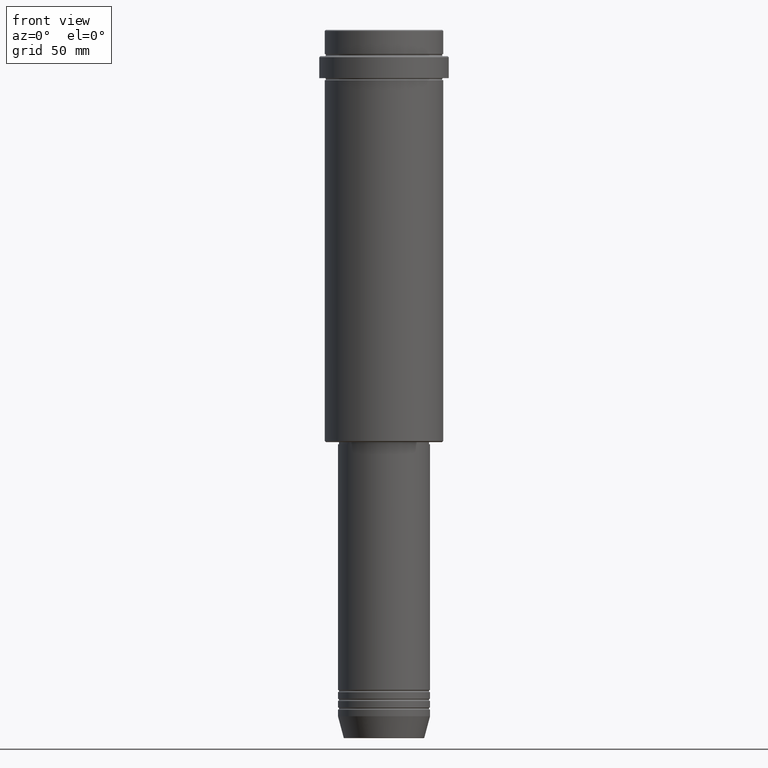
[diagram: clean part render]
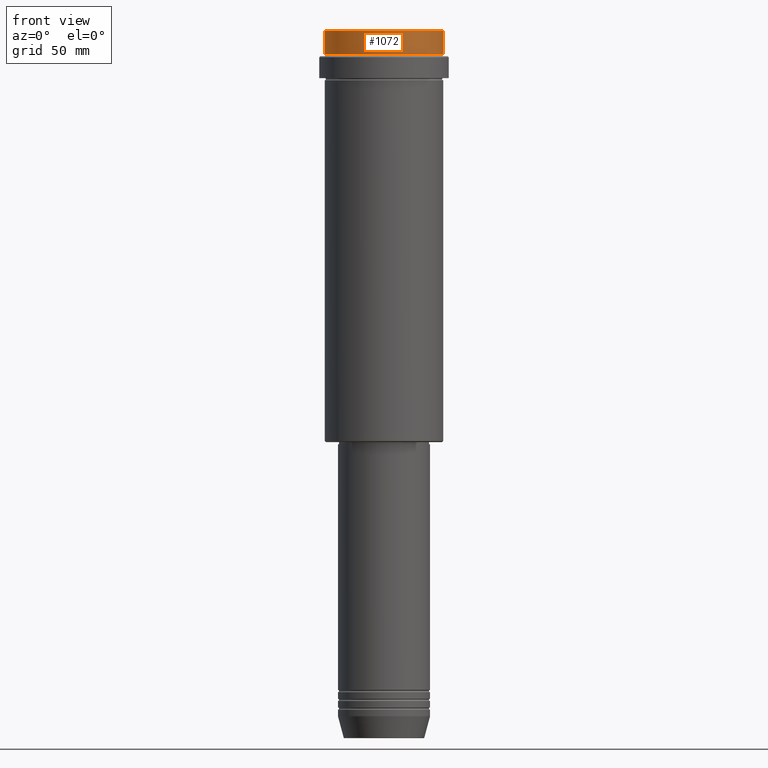
[diagram: same view with one face highlighted and labeled with its STEP entity id]
A machine part, front view. The second image highlights one B-rep face of the part: STEP entity #1072.
In plain terms, the highlighted cylindrical surface (partial cylindrical patch) has radius 27 mm, axis along (-0, -0, 1).
Its self-contained STEP definition (entity closure, byte-faithful):
#32 = EDGE_CURVE ( 'NONE', #1302, #1001, #320, .T. ) ;
#71 = CARTESIAN_POINT ( 'NONE',  ( 0.000000000000000000, 0.000000000000000000, 0.000000000000000000 ) ) ;
#86 = DIRECTION ( 'NONE',  ( -0.000000000000000000, -0.000000000000000000, 1.000000000000000000 ) ) ;
#121 = DIRECTION ( 'NONE',  ( -0.000000000000000000, -0.000000000000000000, 1.000000000000000000 ) ) ;
#160 = ORIENTED_EDGE ( 'NONE', *, *, #32, .F. ) ;
#183 = CYLINDRICAL_SURFACE ( 'NONE', #1051, 27.00000000000000355 ) ;
#201 = DIRECTION ( 'NONE',  ( 1.000000000000000000, 0.000000000000000000, 0.000000000000000000 ) ) ;
#216 = LINE ( 'NONE', #1300, #1049 ) ;
#284 = CARTESIAN_POINT ( 'NONE',  ( 0.000000000000000000, 0.000000000000000000, -0.5000000000000350830 ) ) ;
#288 = DIRECTION ( 'NONE',  ( -0.000000000000000000, -0.000000000000000000, 1.000000000000000000 ) ) ;
#320 = LINE ( 'NONE', #668, #1329 ) ;
#356 = ORIENTED_EDGE ( 'NONE', *, *, #579, .T. ) ;
#404 = ORIENTED_EDGE ( 'NONE', *, *, #1127, .T. ) ;
#531 = VERTEX_POINT ( 'NONE', #1168 ) ;
#548 = DIRECTION ( 'NONE',  ( -0.000000000000000000, -0.000000000000000000, 1.000000000000000000 ) ) ;
#579 = EDGE_CURVE ( 'NONE', #531, #868, #216, .T. ) ;
#632 = DIRECTION ( 'NONE',  ( 1.000000000000000000, 0.000000000000000000, 0.000000000000000000 ) ) ;
#668 = CARTESIAN_POINT ( 'NONE',  ( -27.00000000000000355, 3.306546357697854128E-15, 0.000000000000000000 ) ) ;
#731 = DIRECTION ( 'NONE',  ( 0.000000000000000000, 0.000000000000000000, -1.000000000000000000 ) ) ;
#778 = CARTESIAN_POINT ( 'NONE',  ( -27.00000000000000355, 3.306546357697854128E-15, -11.00000000000000178 ) ) ;
#782 = ORIENTED_EDGE ( 'NONE', *, *, #1050, .T. ) ;
#828 = AXIS2_PLACEMENT_3D ( 'NONE', #284, #731, #1055 ) ;
#861 = EDGE_LOOP ( 'NONE', ( #160, #404, #356, #782 ) ) ;
#868 = VERTEX_POINT ( 'NONE', #898 ) ;
#898 = CARTESIAN_POINT ( 'NONE',  ( 27.00000000000000355, 0.000000000000000000, -0.5000000000000350830 ) ) ;
#931 = CIRCLE ( 'NONE', #828, 27.00000000000000355 ) ;
#981 = CIRCLE ( 'NONE', #1160, 27.00000000000000355 ) ;
#1001 = VERTEX_POINT ( 'NONE', #1129 ) ;
#1049 = VECTOR ( 'NONE', #548, 1000.000000000000000 ) ;
#1050 = EDGE_CURVE ( 'NONE', #868, #1001, #931, .T. ) ;
#1051 = AXIS2_PLACEMENT_3D ( 'NONE', #71, #288, #632 ) ;
#1055 = DIRECTION ( 'NONE',  ( 1.000000000000000000, 0.000000000000000000, 0.000000000000000000 ) ) ;
#1072 = ADVANCED_FACE ( 'NONE', ( #1360 ), #183, .T. ) ;
#1127 = EDGE_CURVE ( 'NONE', #1302, #531, #981, .T. ) ;
#1129 = CARTESIAN_POINT ( 'NONE',  ( -27.00000000000000355, 3.306546357697854128E-15, -0.5000000000000350830 ) ) ;
#1160 = AXIS2_PLACEMENT_3D ( 'NONE', #1393, #86, #201 ) ;
#1168 = CARTESIAN_POINT ( 'NONE',  ( 27.00000000000000355, 0.000000000000000000, -11.00000000000000178 ) ) ;
#1300 = CARTESIAN_POINT ( 'NONE',  ( 27.00000000000000355, 0.000000000000000000, 0.000000000000000000 ) ) ;
#1302 = VERTEX_POINT ( 'NONE', #778 ) ;
#1329 = VECTOR ( 'NONE', #121, 1000.000000000000000 ) ;
#1360 = FACE_OUTER_BOUND ( 'NONE', #861, .T. ) ;
#1393 = CARTESIAN_POINT ( 'NONE',  ( 0.000000000000000000, 0.000000000000000000, -11.00000000000000178 ) ) ;